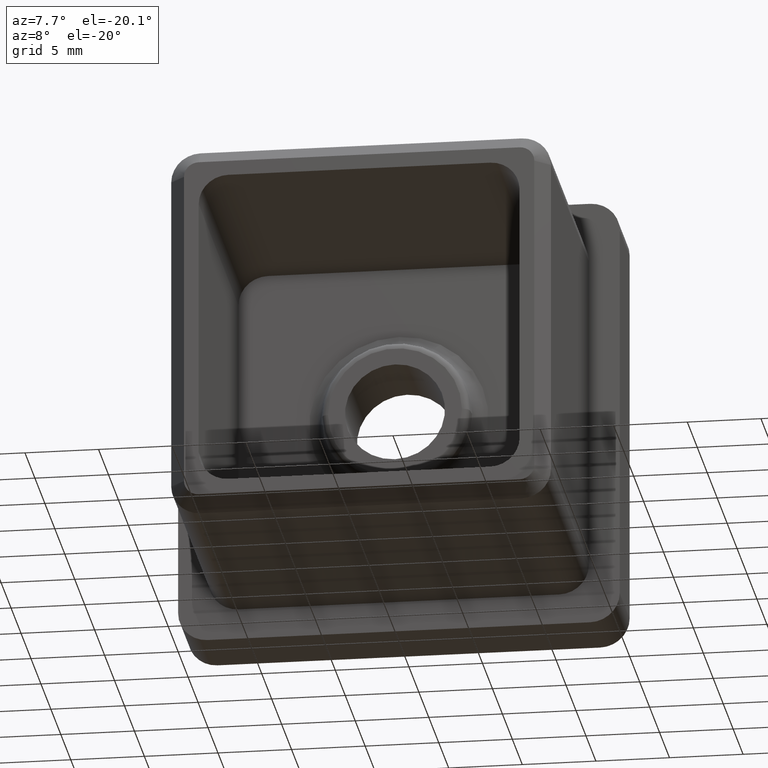
[diagram: clean part render]
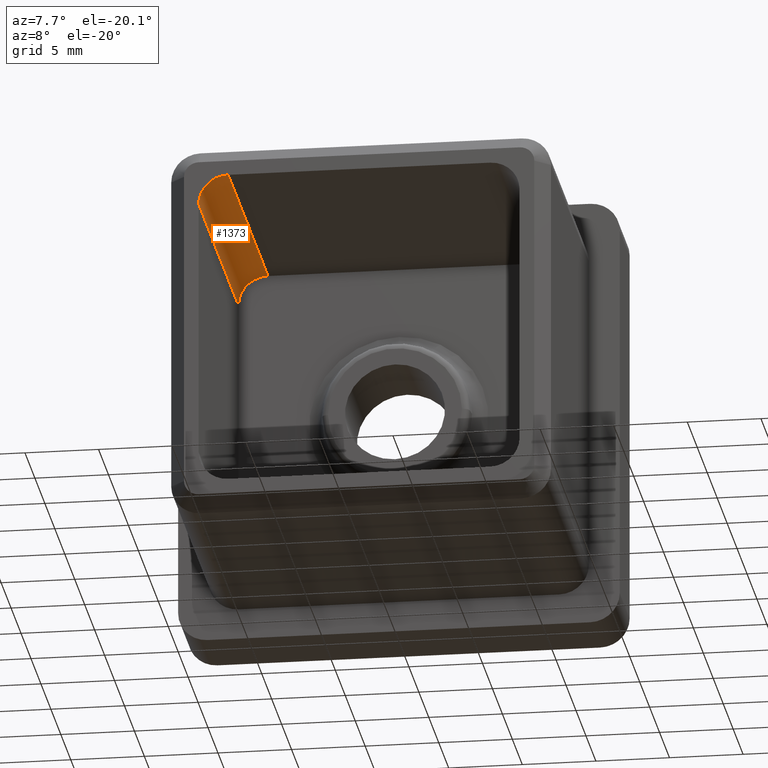
[diagram: same view with one face highlighted and labeled with its STEP entity id]
A machine part, auxiliary view. The second image highlights one B-rep face of the part: STEP entity #1373.
In plain terms, the highlighted cylindrical surface (edge-blend (fillet) strip) has radius 2 mm, axis along (0, -1, 0).
Its self-contained STEP definition (entity closure, byte-faithful):
#555 = EDGE_CURVE ( 'NONE', #2165, #3107, #10426, .T. ) ;
#1240 = CIRCLE ( 'NONE', #9523, 2.000000000000000000 ) ;
#1370 = AXIS2_PLACEMENT_3D ( 'NONE', #10740, #6571, #2075 ) ;
#1373 = ADVANCED_FACE ( 'NONE', ( #15103 ), #16865, .F. ) ;
#2075 = DIRECTION ( 'NONE',  ( 0.0000000000000000000, 0.0000000000000000000, -1.000000000000000000 ) ) ;
#2165 = VERTEX_POINT ( 'NONE', #6405 ) ;
#2814 = VECTOR ( 'NONE', #15330, 1000.000000000000000 ) ;
#2990 = EDGE_CURVE ( 'NONE', #17270, #2165, #1240, .T. ) ;
#3107 = VERTEX_POINT ( 'NONE', #14673 ) ;
#3804 = DIRECTION ( 'NONE',  ( -0.0000000000000000000, 1.000000000000000000, -0.0000000000000000000 ) ) ;
#4322 = DIRECTION ( 'NONE',  ( -0.0000000000000000000, -1.000000000000000000, -0.0000000000000000000 ) ) ;
#4619 = VECTOR ( 'NONE', #13045, 1000.000000000000000 ) ;
#5598 = ORIENTED_EDGE ( 'NONE', *, *, #2990, .F. ) ;
#5760 = CARTESIAN_POINT ( 'NONE',  ( -8.900000000000005700, 0.0000000000000000000, 10.90000000000000600 ) ) ;
#6118 = ORIENTED_EDGE ( 'NONE', *, *, #14184, .F. ) ;
#6405 = CARTESIAN_POINT ( 'NONE',  ( -10.90000000000000600, 0.0000000000000000000, 8.900000000000005700 ) ) ;
#6571 = DIRECTION ( 'NONE',  ( 0.0000000000000000000, -1.000000000000000000, 0.0000000000000000000 ) ) ;
#8028 = ORIENTED_EDGE ( 'NONE', *, *, #13159, .F. ) ;
#8942 = EDGE_LOOP ( 'NONE', ( #8028, #15342, #5598, #6118 ) ) ;
#9321 = CIRCLE ( 'NONE', #12240, 2.000000000000000000 ) ;
#9523 = AXIS2_PLACEMENT_3D ( 'NONE', #12894, #4322, #14249 ) ;
#10426 = LINE ( 'NONE', #16873, #2814 ) ;
#10740 = CARTESIAN_POINT ( 'NONE',  ( -8.900000000000005700, -20.00000000000000000, 8.900000000000005700 ) ) ;
#11719 = CARTESIAN_POINT ( 'NONE',  ( -8.900000000000005700, 0.0000000000000000000, 10.90000000000000600 ) ) ;
#12240 = AXIS2_PLACEMENT_3D ( 'NONE', #13821, #3804, #15345 ) ;
#12894 = CARTESIAN_POINT ( 'NONE',  ( -8.900000000000005700, 0.0000000000000000000, 8.900000000000005700 ) ) ;
#13045 = DIRECTION ( 'NONE',  ( -0.0000000000000000000, 1.000000000000000000, 0.0000000000000000000 ) ) ;
#13116 = LINE ( 'NONE', #11719, #4619 ) ;
#13159 = EDGE_CURVE ( 'NONE', #3107, #15376, #9321, .T. ) ;
#13821 = CARTESIAN_POINT ( 'NONE',  ( -8.900000000000005700, -20.00000000000000000, 8.900000000000005700 ) ) ;
#14184 = EDGE_CURVE ( 'NONE', #15376, #17270, #13116, .T. ) ;
#14249 = DIRECTION ( 'NONE',  ( 0.0000000000000000000, 0.0000000000000000000, 1.000000000000000000 ) ) ;
#14673 = CARTESIAN_POINT ( 'NONE',  ( -10.90000000000000600, -20.00000000000000000, 8.900000000000005700 ) ) ;
#15103 = FACE_OUTER_BOUND ( 'NONE', #8942, .T. ) ;
#15330 = DIRECTION ( 'NONE',  ( -0.0000000000000000000, -1.000000000000000000, 0.0000000000000000000 ) ) ;
#15342 = ORIENTED_EDGE ( 'NONE', *, *, #555, .F. ) ;
#15345 = DIRECTION ( 'NONE',  ( 0.0000000000000000000, 0.0000000000000000000, -1.000000000000000000 ) ) ;
#15376 = VERTEX_POINT ( 'NONE', #16072 ) ;
#16072 = CARTESIAN_POINT ( 'NONE',  ( -8.900000000000005700, -20.00000000000000000, 10.90000000000000600 ) ) ;
#16865 = CYLINDRICAL_SURFACE ( 'NONE', #1370, 2.000000000000000000 ) ;
#16873 = CARTESIAN_POINT ( 'NONE',  ( -10.90000000000000600, -20.00000000000000000, 8.900000000000005700 ) ) ;
#17270 = VERTEX_POINT ( 'NONE', #5760 ) ;